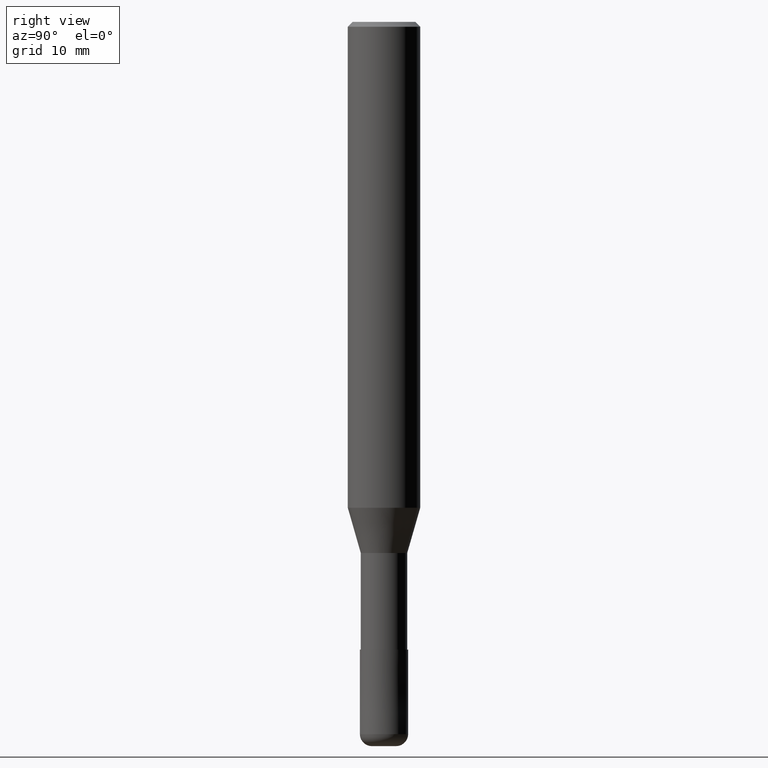
[diagram: clean part render]
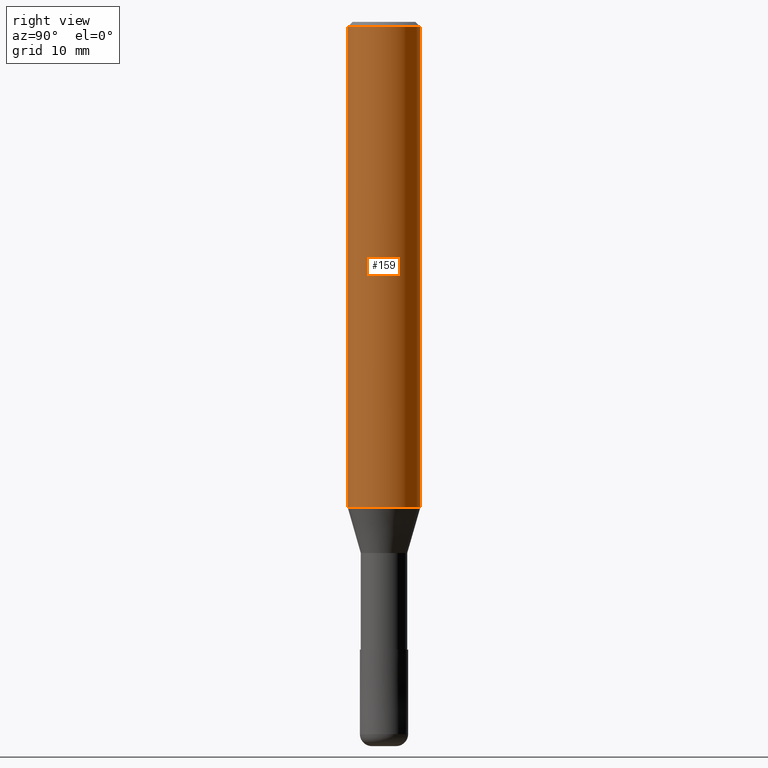
[diagram: same view with one face highlighted and labeled with its STEP entity id]
A machine part, right view. The second image highlights one B-rep face of the part: STEP entity #159.
In plain terms, the highlighted cylindrical surface (edge-blend (fillet) strip) has radius 3 mm, axis along (-0, -0, 1).
Its self-contained STEP definition (entity closure, byte-faithful):
#143=VERTEX_POINT('',#352);
#159=ADVANCED_FACE('',(#369),#370,.T.);
#201=EDGE_CURVE('',#143,#293,#415,.T.);
#237=VERTEX_POINT('',#460);
#239=EDGE_CURVE('',#263,#237,#462,.T.);
#241=EDGE_CURVE('',#293,#237,#464,.T.);
#263=VERTEX_POINT('',#487);
#277=EDGE_CURVE('',#263,#143,#503,.T.);
#293=VERTEX_POINT('',#521);
#352=CARTESIAN_POINT('',(0.0,3.0,-40.251));
#369=FACE_OUTER_BOUND('',#596,.T.);
#370=CYLINDRICAL_SURFACE('',#597,3.0);
#415=CIRCLE('',#658,3.0);
#460=CARTESIAN_POINT('',(3.67381906146713E-016,-3.0,-0.399999999999999));
#462=CIRCLE('',#720,3.0);
#464=LINE('',#723,#724);
#487=CARTESIAN_POINT('',(0.0,3.0,-0.399999999999999));
#503=LINE('',#772,#773);
#521=CARTESIAN_POINT('',(3.67381906146713E-016,-3.0,-40.251));
#596=EDGE_LOOP('',(#875,#876,#877,#878));
#597=AXIS2_PLACEMENT_3D('',#879,#880,#881);
#658=AXIS2_PLACEMENT_3D('',#929,#930,#931);
#720=AXIS2_PLACEMENT_3D('',#997,#998,#999);
#723=CARTESIAN_POINT('',(3.67381906146713E-016,-3.0,-20.3255));
#724=VECTOR('',#1000,1.0);
#772=CARTESIAN_POINT('',(-3.67381906146713E-016,3.0,-20.3255));
#773=VECTOR('',#1041,1.0);
#875=ORIENTED_EDGE('',*,*,#277,.F.);
#876=ORIENTED_EDGE('',*,*,#239,.T.);
#877=ORIENTED_EDGE('',*,*,#241,.F.);
#878=ORIENTED_EDGE('',*,*,#201,.F.);
#879=CARTESIAN_POINT('',(0.0,0.0,-20.3255));
#880=DIRECTION('',(-0.0,-0.0,1.0));
#881=DIRECTION('',(0.0,1.0,0.0));
#929=CARTESIAN_POINT('',(0.0,0.0,-40.251));
#930=DIRECTION('',(0.0,0.0,-1.0));
#931=DIRECTION('',(0.0,1.0,0.0));
#997=CARTESIAN_POINT('',(0.0,0.0,-0.399999999999999));
#998=DIRECTION('',(0.0,0.0,-1.0));
#999=DIRECTION('',(0.0,1.0,0.0));
#1000=DIRECTION('',(-0.0,-0.0,1.0));
#1041=DIRECTION('',(0.0,0.0,-1.0));